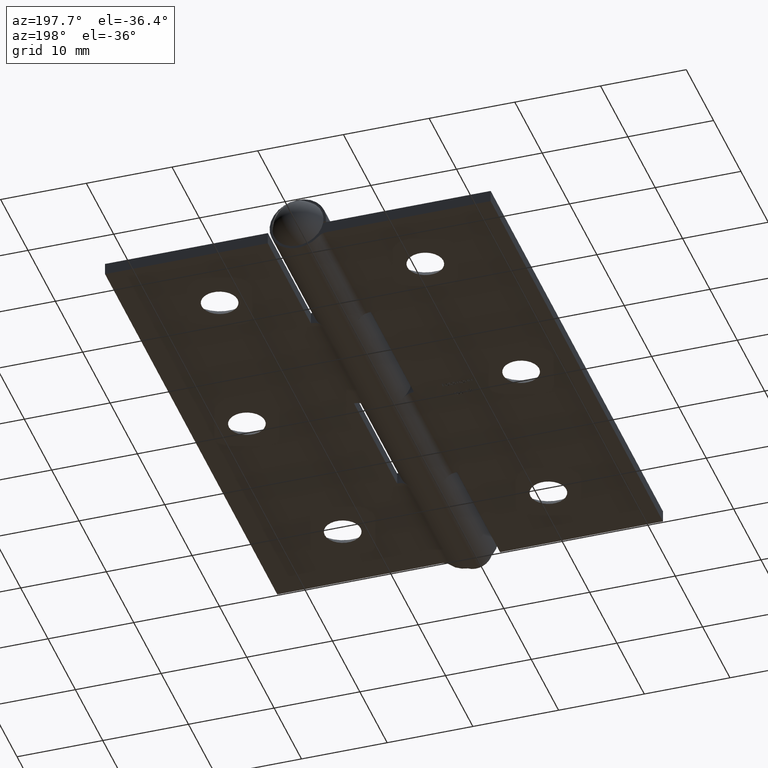
[diagram: clean part render]
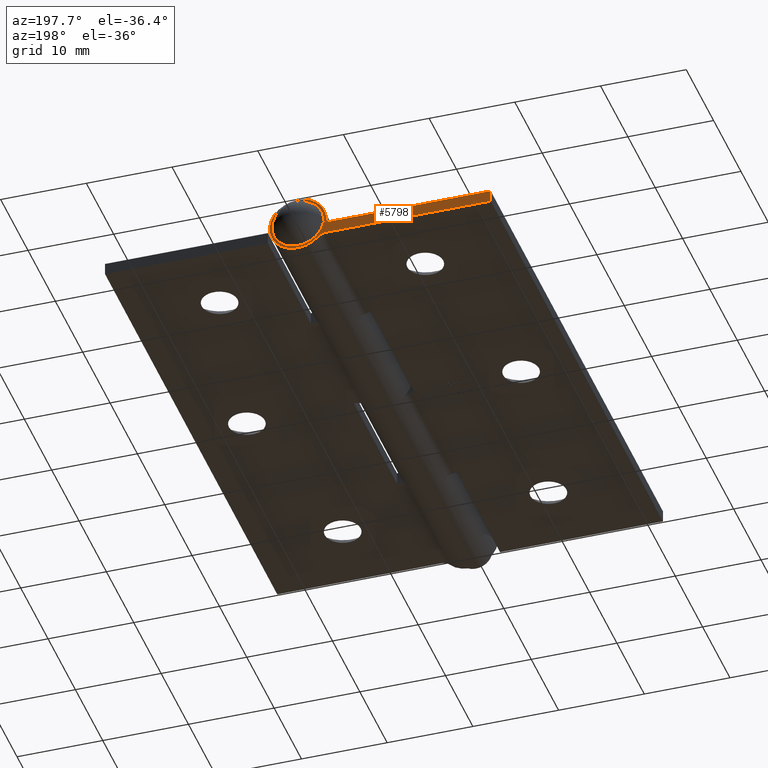
[diagram: same view with one face highlighted and labeled with its STEP entity id]
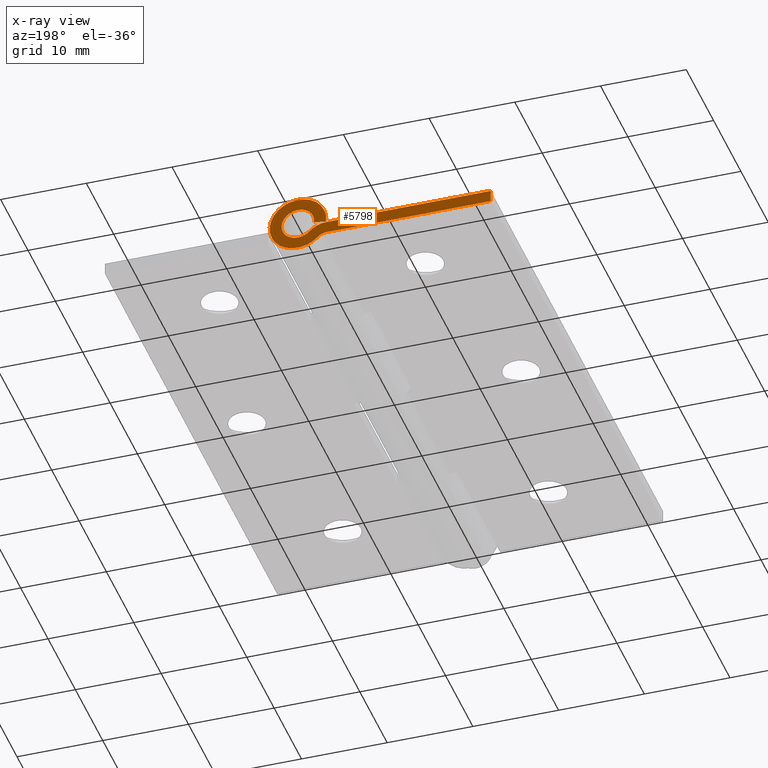
[diagram: x-ray of the same camera — body ghosted, the highlighted face saturated]
A machine part, auxiliary view. The second image highlights one B-rep face of the part: STEP entity #5798.
The next image is the same camera in x-ray: the body ghosted, the highlighted face saturated — about 0% of this face is hidden behind the body in this view.
In plain terms, the highlighted planar face has unit normal (0, -1, 0).
Its self-contained STEP definition (entity closure, byte-faithful):
#164 = CARTESIAN_POINT ( 'NONE',  ( -3.346640106136305803, 31.50000000000000000, -0.4999999999999995559 ) ) ;
#203 = EDGE_LOOP ( 'NONE', ( #1989, #11180, #9592, #744, #9602, #7791, #6811, #2615 ) ) ;
#222 = VERTEX_POINT ( 'NONE', #5227 ) ;
#325 = AXIS2_PLACEMENT_3D ( 'NONE', #640, #4017, #5837 ) ;
#478 = CARTESIAN_POINT ( 'NONE',  ( -3.346640106136306247, 31.50000000000000000, -3.299999999999999822 ) ) ;
#640 = CARTESIAN_POINT ( 'NONE',  ( 0.000000000000000000, 31.50000000000000000, 0.000000000000000000 ) ) ;
#705 = PLANE ( 'NONE',  #1962 ) ;
#744 = ORIENTED_EDGE ( 'NONE', *, *, #8891, .T. ) ;
#816 = CARTESIAN_POINT ( 'NONE',  ( -3.346640106136306247, 31.50000000000000000, -1.899999999999999689 ) ) ;
#878 = CIRCLE ( 'NONE', #1328, 1.399999999999999245 ) ;
#908 = LINE ( 'NONE', #2423, #8913 ) ;
#942 = VERTEX_POINT ( 'NONE', #4193 ) ;
#987 = DIRECTION ( 'NONE',  ( 0.000000000000000000, 0.000000000000000000, 1.000000000000000000 ) ) ;
#1068 = DIRECTION ( 'NONE',  ( -0.000000000000000000, -1.000000000000000000, -0.000000000000000000 ) ) ;
#1328 = AXIS2_PLACEMENT_3D ( 'NONE', #478, #7566, #4117 ) ;
#1598 = DIRECTION ( 'NONE',  ( -0.9926266275247999094, -0.000000000000000000, -0.1212121212121212016 ) ) ;
#1901 = LINE ( 'NONE', #5006, #4924 ) ;
#1962 = AXIS2_PLACEMENT_3D ( 'NONE', #6058, #4159, #6801 ) ;
#1986 = VERTEX_POINT ( 'NONE', #164 ) ;
#1989 = ORIENTED_EDGE ( 'NONE', *, *, #4436, .T. ) ;
#2115 = VERTEX_POINT ( 'NONE', #816 ) ;
#2171 = EDGE_CURVE ( 'NONE', #1986, #6921, #2335, .T. ) ;
#2335 = CIRCLE ( 'NONE', #3363, 2.800000000000000266 ) ;
#2423 = CARTESIAN_POINT ( 'NONE',  ( -22.50000000000000000, 31.50000000000000000, -0.5000000000000000000 ) ) ;
#2430 = VERTEX_POINT ( 'NONE', #5665 ) ;
#2561 = CARTESIAN_POINT ( 'NONE',  ( -1.352897064182764897, 31.50000000000000000, -1.334042553191489677 ) ) ;
#2615 = ORIENTED_EDGE ( 'NONE', *, *, #7840, .T. ) ;
#2730 = EDGE_CURVE ( 'NONE', #4038, #942, #1901, .T. ) ;
#2783 = CIRCLE ( 'NONE', #3592, 1.900000000000003242 ) ;
#3363 = AXIS2_PLACEMENT_3D ( 'NONE', #4809, #8289, #9971 ) ;
#3592 = AXIS2_PLACEMENT_3D ( 'NONE', #5540, #1068, #987 ) ;
#3683 = CARTESIAN_POINT ( 'NONE',  ( -22.50000000000000000, 31.50000000000000000, -0.5000000000000000000 ) ) ;
#4017 = DIRECTION ( 'NONE',  ( 0.000000000000000000, 1.000000000000000000, 0.000000000000000000 ) ) ;
#4038 = VERTEX_POINT ( 'NONE', #10574 ) ;
#4117 = DIRECTION ( 'NONE',  ( 0.000000000000000000, 0.000000000000000000, -1.000000000000000000 ) ) ;
#4159 = DIRECTION ( 'NONE',  ( 0.000000000000000000, -1.000000000000000000, 0.000000000000000000 ) ) ;
#4193 = CARTESIAN_POINT ( 'NONE',  ( -3.275667870831842077, 31.50000000000000000, -0.4000000000000002998 ) ) ;
#4285 = DIRECTION ( 'NONE',  ( 1.000000000000000000, 0.000000000000000000, 0.000000000000000000 ) ) ;
#4436 = EDGE_CURVE ( 'NONE', #222, #2430, #8788, .T. ) ;
#4439 = VECTOR ( 'NONE', #5920, 1000.000000000000000 ) ;
#4739 = EDGE_CURVE ( 'NONE', #2430, #1986, #908, .T. ) ;
#4809 = CARTESIAN_POINT ( 'NONE',  ( -3.346640106136306247, 31.50000000000000000, -3.299999999999999822 ) ) ;
#4924 = VECTOR ( 'NONE', #1598, 1000.000000000000227 ) ;
#5006 = CARTESIAN_POINT ( 'NONE',  ( -3.275667870831839856, 31.50000000000000000, -0.4000000000000000222 ) ) ;
#5133 = EDGE_CURVE ( 'NONE', #942, #10000, #7671, .T. ) ;
#5227 = CARTESIAN_POINT ( 'NONE',  ( -22.50000000000000000, 31.50000000000000000, -1.899999999999999689 ) ) ;
#5477 = CARTESIAN_POINT ( 'NONE',  ( -2.349768585159534684, 31.50000000000000000, -2.317021276595745416 ) ) ;
#5540 = CARTESIAN_POINT ( 'NONE',  ( 0.000000000000000000, 31.50000000000000000, 0.000000000000000000 ) ) ;
#5665 = CARTESIAN_POINT ( 'NONE',  ( -22.50000000000000000, 31.50000000000000000, -0.5000000000000000000 ) ) ;
#5798 = ADVANCED_FACE ( 'NONE', ( #7796 ), #705, .F. ) ;
#5837 = DIRECTION ( 'NONE',  ( 0.000000000000000000, 0.000000000000000000, 1.000000000000000000 ) ) ;
#5920 = DIRECTION ( 'NONE',  ( -1.000000000000000000, -0.000000000000000000, -0.000000000000000000 ) ) ;
#6058 = CARTESIAN_POINT ( 'NONE',  ( -3.346640106136306247, 31.50000000000000000, -3.299999999999999822 ) ) ;
#6801 = DIRECTION ( 'NONE',  ( 0.000000000000000000, -0.000000000000000000, -1.000000000000000000 ) ) ;
#6811 = ORIENTED_EDGE ( 'NONE', *, *, #7272, .T. ) ;
#6921 = VERTEX_POINT ( 'NONE', #2561 ) ;
#7272 = EDGE_CURVE ( 'NONE', #10000, #2115, #878, .T. ) ;
#7566 = DIRECTION ( 'NONE',  ( -0.000000000000000000, -1.000000000000000000, 0.000000000000000000 ) ) ;
#7671 = CIRCLE ( 'NONE', #325, 3.300000000000001599 ) ;
#7791 = ORIENTED_EDGE ( 'NONE', *, *, #5133, .T. ) ;
#7796 = FACE_OUTER_BOUND ( 'NONE', #203, .T. ) ;
#7840 = EDGE_CURVE ( 'NONE', #2115, #222, #9142, .T. ) ;
#8289 = DIRECTION ( 'NONE',  ( 0.000000000000000000, 1.000000000000000000, -0.000000000000000000 ) ) ;
#8524 = VECTOR ( 'NONE', #8864, 1000.000000000000000 ) ;
#8788 = LINE ( 'NONE', #3683, #8524 ) ;
#8864 = DIRECTION ( 'NONE',  ( -0.000000000000000000, -0.000000000000000000, 1.000000000000000000 ) ) ;
#8891 = EDGE_CURVE ( 'NONE', #6921, #4038, #2783, .T. ) ;
#8913 = VECTOR ( 'NONE', #4285, 1000.000000000000000 ) ;
#9142 = LINE ( 'NONE', #10213, #4439 ) ;
#9592 = ORIENTED_EDGE ( 'NONE', *, *, #2171, .T. ) ;
#9602 = ORIENTED_EDGE ( 'NONE', *, *, #2730, .T. ) ;
#9971 = DIRECTION ( 'NONE',  ( 0.000000000000000000, 0.000000000000000000, -1.000000000000000000 ) ) ;
#10000 = VERTEX_POINT ( 'NONE', #5477 ) ;
#10213 = CARTESIAN_POINT ( 'NONE',  ( -22.50000000000000000, 31.50000000000000000, -1.899999999999999689 ) ) ;
#10574 = CARTESIAN_POINT ( 'NONE',  ( -1.885990592297123181, 31.50000000000000000, -0.2303030303030307591 ) ) ;
#11180 = ORIENTED_EDGE ( 'NONE', *, *, #4739, .T. ) ;